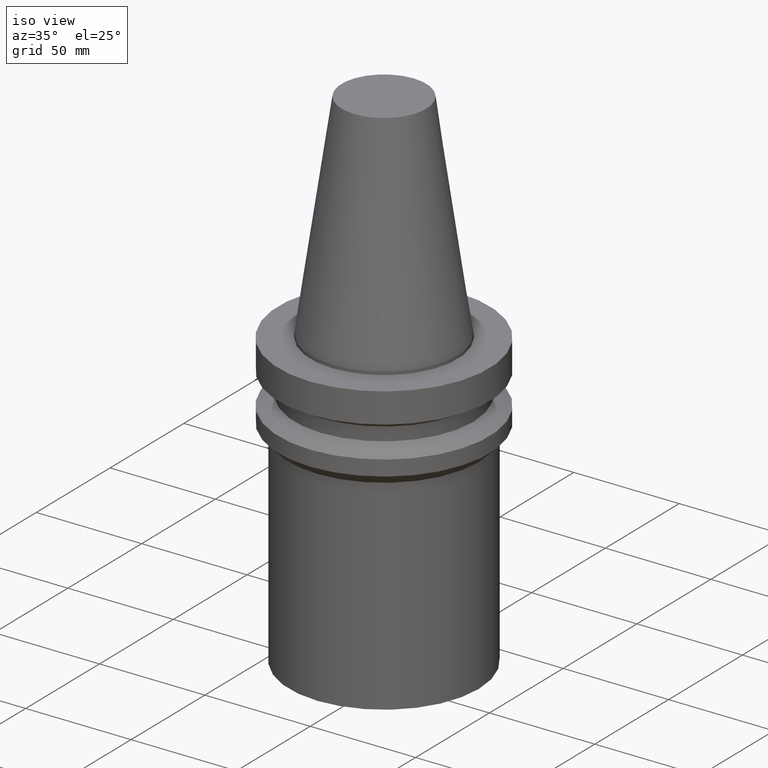
[diagram: clean part render]
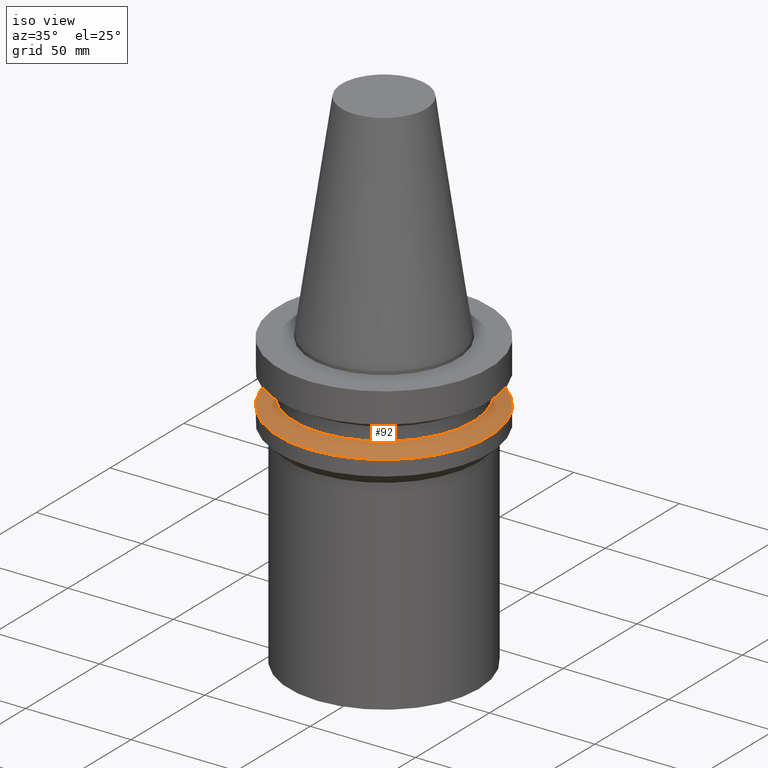
[diagram: same view with one face highlighted and labeled with its STEP entity id]
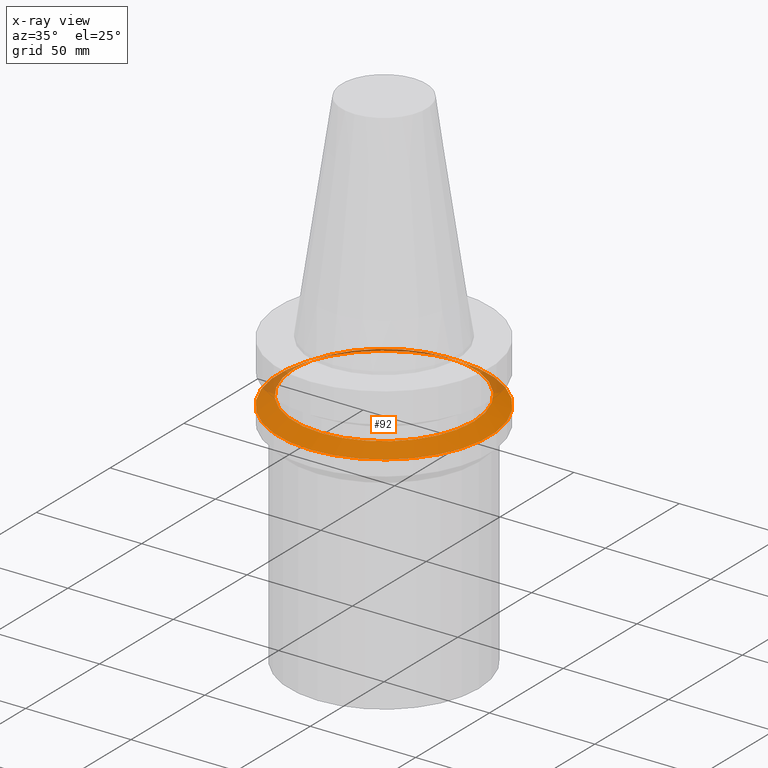
[diagram: x-ray of the same camera — body ghosted, the highlighted face saturated]
A machine part, iso view. The second image highlights one B-rep face of the part: STEP entity #92.
The next image is the same camera in x-ray: the body ghosted, the highlighted face saturated — about 11% of this face is hidden behind the body in this view.
In plain terms, the highlighted conical surface has half-angle 60 deg.
Its self-contained STEP definition (entity closure, byte-faithful):
#86=EDGE_CURVE('Unnamed[1]',#186,#186,#187,.T.);
#92=ADVANCED_FACE('Unnamed[1]',(#194,#195),#196,.T.);
#97=EDGE_CURVE('Unnamed[1]',#203,#203,#204,.T.);
#186=VERTEX_POINT('',#309);
#187=CIRCLE('',#310,42.5);
#194=FACE_BOUND('',#319,.T.);
#195=FACE_BOUND('',#320,.T.);
#196=CONICAL_SURFACE('',#321,46.25,1.04719755108882);
#203=VERTEX_POINT('',#330);
#204=CIRCLE('',#331,50.0);
#309=CARTESIAN_POINT('',(1.61468902694396E-015,42.5,-26.36987298));
#310=AXIS2_PLACEMENT_3D('',#424,#425,#426);
#319=EDGE_LOOP('',(#433));
#320=EDGE_LOOP('',(#434));
#321=AXIS2_PLACEMENT_3D('',#435,#436,#437);
#330=CARTESIAN_POINT('',(1.87983283669119E-015,50.0,-30.7));
#331=AXIS2_PLACEMENT_3D('',#444,#445,#446);
#424=CARTESIAN_POINT('',(1.61468902694396E-015,3.22937805388793E-015,-26.36987298));
#425=DIRECTION('',(6.12323399573677E-017,1.22464679914735E-016,-1.0));
#426=DIRECTION('',(-1.23259516440783E-032,1.0,1.22464679914735E-016));
#433=ORIENTED_EDGE('',*,*,#97,.F.);
#434=ORIENTED_EDGE('',*,*,#86,.T.);
#435=CARTESIAN_POINT('',(1.74726093181758E-015,3.49452186363515E-015,-28.53493649));
#436=DIRECTION('',(6.12323399573676E-017,1.22464679914735E-016,-1.0));
#437=DIRECTION('',(-1.23259516440783E-032,1.0,1.22464679914735E-016));
#444=CARTESIAN_POINT('',(1.87983283669119E-015,3.75966567338237E-015,-30.7));
#445=DIRECTION('',(6.12323399573677E-017,1.22464679914735E-016,-1.0));
#446=DIRECTION('',(-1.23259516440783E-032,1.0,1.22464679914735E-016));